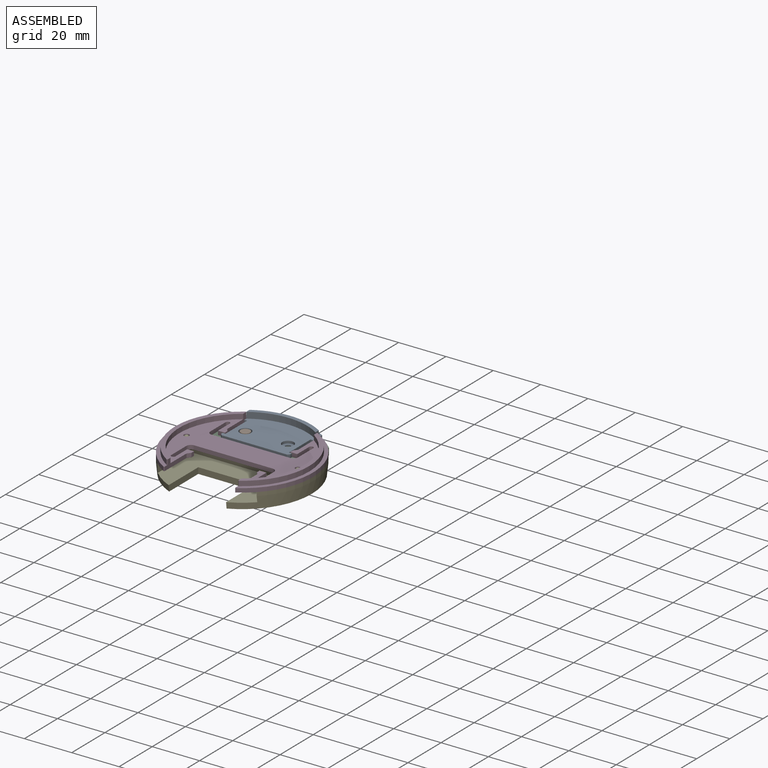
[diagram: assembled view]
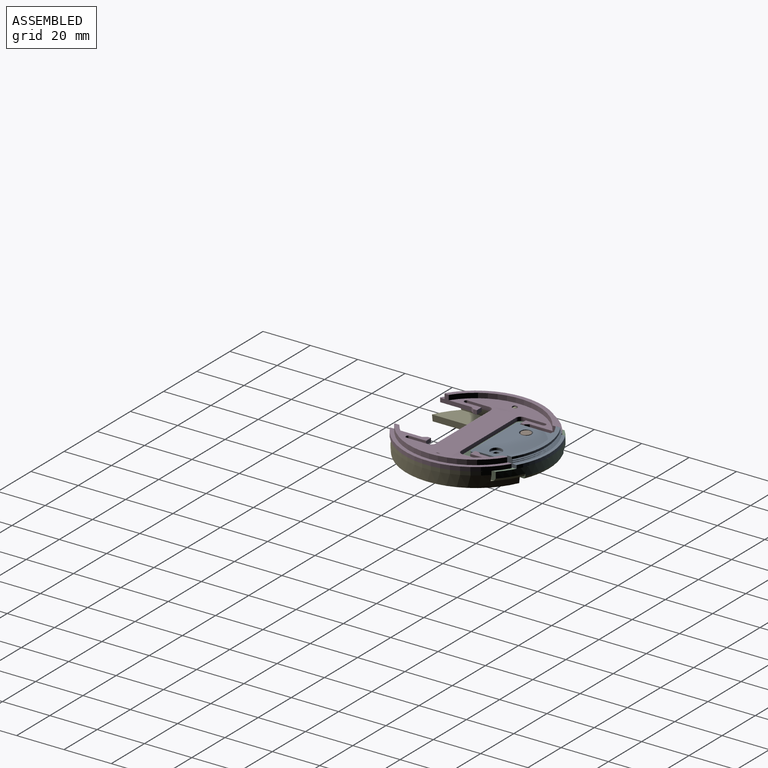
[diagram: assembled view, second angle]
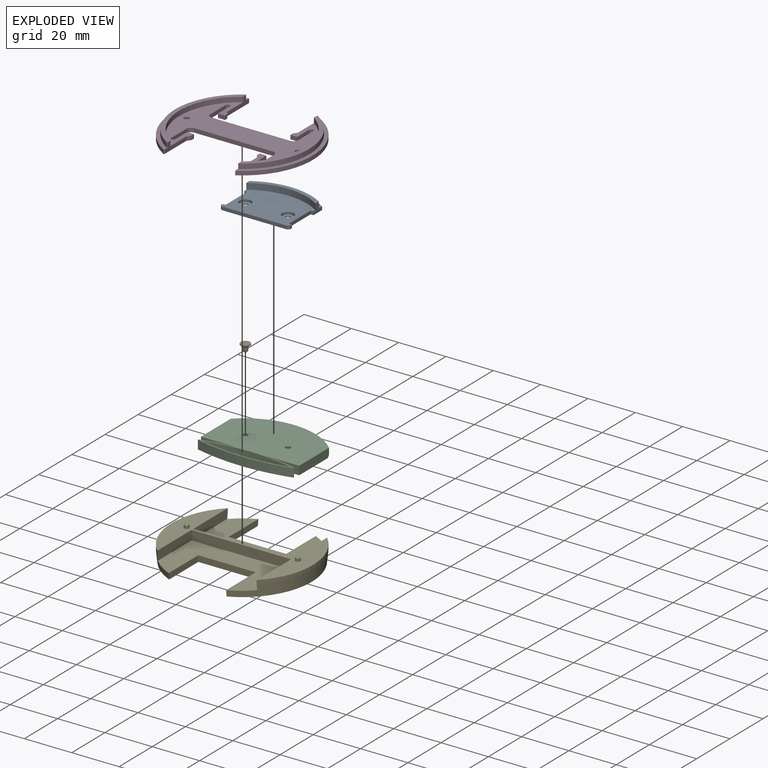
[diagram: exploded view]
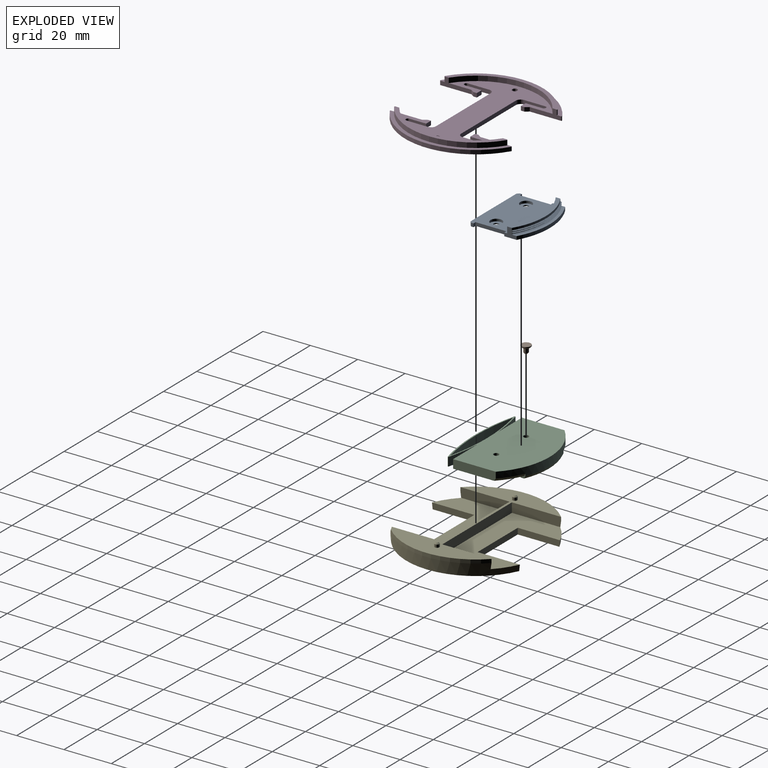
[diagram: exploded view, second angle]
ASSEMBLY  parts=5 mates=3
PART A: 33 faces, bbox 29.8x23.8x4 mm
  f0: cylinder r=1.1mm len=2.2mm, axis (0,0,-1), area 3mm2, adj f17,f31
  f1: cylinder r=1.1mm len=2.2mm, axis (0,0,-1), area 3mm2, adj f17,f29
  f2: cylinder r=28.32mm len=29.27mm, axis (0,0,-1), area 28.9mm2, adj f3,f8,f15,f18
  f3: plane 29.27x6.07mm, normal (0,0,1), area 52.2mm2, adj f2,f15,f18,f28
  f4: cone r=28.32mm half-angle=61.5deg, axis (0,0,-1), area 17.5mm2, adj f10,f15,f16,f18
  f5: cone r=28.82mm half-angle=61.5deg, axis (0,0,1), area 17.5mm2, adj f6,f10,f15,f18
  f6: cone r=28.32mm half-angle=61.5deg, axis (0,0,-1), area 17.5mm2, adj f5,f9,f15,f18
  f7: cone r=28.82mm half-angle=61.5deg, axis (0,0,1), area 17.5mm2, adj f8,f9,f15,f18
  f8: cone r=28.32mm half-angle=61.5deg, axis (0,0,-1), area 17.5mm2, adj f2,f7,f15,f18
  f9: cylinder r=28.32mm len=29.27mm, axis (0,0,-1), area 4.7mm2, adj f6,f7,f15,f18
  f10: cylinder r=28.32mm len=29.27mm, axis (0,0,-1), area 4.7mm2, adj f4,f5,f15,f18
  f11: plane 29.27x20.38mm, normal (0,0,1), area 485.3mm2, adj f12,f13,f14,f15,f18,f20,f21,f22
  f12: plane 1.44x1mm, normal (-1,0,0), area 1.4mm2, adj f11,f17,f24,f25
  f13: plane 27.69x1.44mm, normal (0,-1,0), area 39.9mm2, adj f11,f17,f23,f24
  f14: plane 1.44x1mm, normal (1,0,0), area 1.4mm2, adj f11,f17,f22,f23
  f15: plane 5.21x4.04mm, normal (1,0,0), area 13.1mm2, adj f2,f3,f4,f5,f6,f7,f8,f9
  f16: plane 29.27x5.25mm, normal (0,0,1), area 38.2mm2, adj f4,f15,f18,f19
  f17: plane 29.27x23.83mm, normal (0,0,-1), area 621mm2, adj f0,f1,f12,f13,f14,f15,f18,f19
  f18: plane 5.21x4.04mm, normal (-1,0,0), area 13.1mm2, adj f2,f3,f4,f5,f6,f7,f8,f9
  f19: cylinder r=29.9mm len=29.27mm, axis (0,0,-1), area 44mm2, adj f15,f16,f17,f18
  f20: plane 13x1.44mm, normal (1,0,0), area 18.7mm2, adj f11,f17,f21,f22
  f21: plane 1.44x1.23mm, normal (0,-1,0), area 1.8mm2, adj f11,f15,f17,f20
  f22: plane 1.44x1.23mm, normal (0,1,0), area 1.8mm2, adj f11,f14,f17,f20
  f23: plane 1.44x0.79mm, normal (0.71,-0.71,0), area 1.6mm2, adj f11,f13,f14,f17
  f24: plane 1.44x0.79mm, normal (-0.71,-0.71,0), area 1.6mm2, adj f11,f12,f13,f17
  f25: plane 1.44x1.23mm, normal (0,1,0), area 1.8mm2, adj f11,f12,f17,f26
  f26: plane 13x1.44mm, normal (-1,0,0), area 18.7mm2, adj f11,f17,f25,f27
  f27: plane 1.44x1.23mm, normal (0,-1,0), area 1.8mm2, adj f11,f17,f18,f26
  f28: cylinder r=26.63mm len=29.27mm, axis (0,0,-1), area 80.6mm2, adj f3,f11,f15,f18
  f29: plane 4.89x4.89mm, normal (0,0,1), area 15mm2, adj f1,f30
  f30: cylinder r=2.44mm len=4.89mm, axis (0,0,1), area 15.4mm2, adj f11,f29
  f31: plane 4.89x4.89mm, normal (0,0,1), area 15mm2, adj f0,f32
  f32: cylinder r=2.44mm len=4.89mm, axis (0,0,1), area 15.4mm2, adj f11,f31
PART B: 7 faces, bbox 4x4x3.3 mm
  f0: cylinder r=2mm len=4mm, axis (0,0,-1), area 5mm2, adj f2,f5
  f1: plane 3x3mm, normal (0,0,1), area 3.9mm2, adj f3,f5
  f2: plane 4x4mm, normal (0,0,-1), area 12.6mm2, adj f0
  f3: cylinder r=1mm len=2mm, axis (0,0,-1), area 11.9mm2, adj f1,f6
  f4: plane 1x1mm, normal (0,0,1), area 0.8mm2, adj f6
  f5: cone r=1.5mm half-angle=45deg, axis (0,0,-1), area 7.8mm2, adj f0,f1
  f6: cone r=0.5mm half-angle=45deg, axis (0,0,-1), area 3.3mm2, adj f3,f4
PART C: 33 faces, bbox 42.2x33.6x9.2 mm
  f0: plane 14.37x3.65mm, normal (0,-1,0), area 52.5mm2, adj f2,f3,f6,f19
  f1: plane 14.37x3.65mm, normal (0,-1,0), area 52.5mm2, adj f2,f4,f6,f20
  f2: plane 41.5x28.78mm, normal (0,0,1), area 621.4mm2, adj f0,f1,f3,f4,f8,f9,f10,f12
  f3: plane 18.01x3.66mm, normal (-1,0,0), area 65.4mm2, adj f0,f2,f5,f6,f27
  f4: plane 18.01x3.66mm, normal (1,0,0), area 65.4mm2, adj f1,f2,f5,f6,f28
  f5: cylinder r=29.9mm len=41.5mm, axis (0,0,-1), area 145.2mm2, adj f3,f4,f6,f12,f13,f26,f27,f28
  f6: plane 41.5x31.62mm, normal (0,0,-1), area 1016.4mm2, adj f0,f1,f3,f4,f5,f19,f20,f21
  f7: cylinder r=35mm len=23mm, axis (0,0,-1), area 123.7mm2, adj f8,f10,f11,f15,f16,f17
  f8: plane 2.78x2.32mm, normal (-1,0,0), area 6.5mm2, adj f2,f7,f9,f11
  f9: cylinder r=37.2mm len=23mm, axis (0,0,-1), area 65mm2, adj f2,f8,f10,f11
  f10: plane 2.78x2.32mm, normal (1,0,0), area 6.5mm2, adj f2,f7,f9,f11
  f11: plane 23x4.14mm, normal (0,0,1), area 51.5mm2, adj f7,f8,f9,f10
  f12: plane 2.91x2.02mm, normal (-1,0,0), area 2.4mm2, adj f2,f5,f14,f18,f26,f27
  f13: plane 2.91x2.02mm, normal (1,0,0), area 2.4mm2, adj f2,f5,f14,f18,f26,f28
  f14: plane 23x3.8mm, normal (0,0,1), area 31.6mm2, adj f12,f13,f18,f26
  f15: plane 9.05x2.5mm, normal (1,0,0), area 17.6mm2, adj f2,f7,f17,f18
  f16: plane 9.05x2.5mm, normal (-1,0,0), area 17.6mm2, adj f2,f7,f17,f18
  f17: plane 23x7.72mm, normal (0,0,1), area 138.1mm2, adj f7,f15,f16,f18
  f18: torus R=21.45mm, axis (0,0,-1), area 186.3mm2, adj f12,f13,f14,f15,f16,f17
  f19: cylinder r=81.5mm len=13.68mm, axis (0,0,1), area 50.7mm2, adj f0,f2,f6,f22
  f20: cylinder r=81.5mm len=13.68mm, axis (0,0,1), area 50.7mm2, adj f1,f2,f6,f24
  f21: cylinder r=81mm len=37.92mm, axis (0,0,1), area 139.7mm2, adj f2,f6,f25
  f22: cylinder r=0.25mm len=3.65mm, axis (0,0,1), area 2.4mm2, adj f2,f6,f19,f23
  f23: cylinder r=81.5mm len=40.12mm, axis (0,0,1), area 148mm2, adj f2,f6,f22,f24
  f24: cylinder r=0.25mm len=3.65mm, axis (0,0,1), area 2.4mm2, adj f2,f6,f20,f23
  f25: cylinder r=81mm len=37.92mm, axis (0,0,1), area 139.7mm2, adj f2,f6,f21
  f26: cone r=29.9mm half-angle=26.6deg, axis (0,0,-1), area 26.4mm2, adj f5,f12,f13,f14
  f27: cone r=29.9mm half-angle=26.6deg, axis (0,0,-1), area 12.5mm2, adj f2,f3,f5,f12
  f28: cone r=29.9mm half-angle=26.6deg, axis (0,0,-1), area 12.5mm2, adj f2,f4,f5,f13
  f29: cylinder r=1.1mm len=2.2mm, axis (0,0,-1), area 13.8mm2, adj f6,f30
  f30: plane 2.2x2.2mm, normal (0,0,-1), area 3.8mm2, adj f29
  f31: cylinder r=1.1mm len=2.2mm, axis (0,0,-1), area 13.8mm2, adj f6,f32
  f32: plane 2.2x2.2mm, normal (0,0,-1), area 3.8mm2, adj f31
PART D: 56 faces, bbox 59.8x51.4x3.8 mm
  f0: plane 53.05x43.84mm, normal (0,0,1), area 922.5mm2, adj f4,f5,f6,f7,f8,f9,f11,f12
  f1: plane 59.79x51.42mm, normal (0,0,-1), area 1307.5mm2, adj f4,f5,f6,f7,f8,f9,f10,f11
  f2: plane 51.42x14.96mm, normal (0,0,1), area 94.3mm2, adj f23,f24,f25,f36,f48,f49,f54,f55
  f3: plane 51.42x14.96mm, normal (0,0,1), area 94.3mm2, adj f9,f10,f11,f32,f50,f51,f52,f53
  f4: plane 9.1x1.7mm, normal (1,0,0), area 15.5mm2, adj f0,f1,f38,f45
  f5: plane 7.1x1.7mm, normal (-1,0,0), area 12.1mm2, adj f0,f1,f6,f38
  f6: plane 2.9x1.7mm, normal (0,-1,0), area 4.9mm2, adj f0,f1,f5,f7
  f7: plane 1.7x1.5mm, normal (1,0,0), area 2.6mm2, adj f0,f1,f6,f8
  f8: plane 1.7x1.5mm, normal (0.81,0.59,0), area 3.2mm2, adj f0,f1,f7,f9
  f9: plane 13.16x3.78mm, normal (1,0,0), area 25.9mm2, adj f0,f1,f3,f8,f33,f34,f51,f52
  f10: cylinder r=29.9mm len=51.35mm, axis (0,0,-1), area 105mm2, adj f1,f3,f52,f53
  f11: plane 13.16x3.78mm, normal (1,0,0), area 25.9mm2, adj f0,f1,f3,f12,f33,f34,f50,f53
  f12: plane 1.7x1.5mm, normal (0.81,-0.59,0), area 3.2mm2, adj f0,f1,f11,f13
  f13: plane 1.7x1.5mm, normal (1,0,0), area 2.6mm2, adj f0,f1,f12,f14
  f14: plane 2.9x1.7mm, normal (0,1,0), area 4.9mm2, adj f0,f1,f13,f15
  f15: plane 7.1x1.7mm, normal (-1,0,0), area 12.1mm2, adj f0,f1,f14,f39
  f16: plane 9.1x1.7mm, normal (1,0,0), area 15.5mm2, adj f0,f1,f39,f42
  f17: plane 33.07x1.7mm, normal (0,-1,0), area 56.2mm2, adj f0,f1,f42,f43
  f18: plane 9.1x1.7mm, normal (-1,0,0), area 15.5mm2, adj f0,f1,f40,f43
  f19: plane 7.1x1.7mm, normal (1,0,0), area 12.1mm2, adj f0,f1,f20,f40
  f20: plane 2.9x1.7mm, normal (0,1,0), area 4.9mm2, adj f0,f1,f19,f21
  f21: plane 1.7x1.5mm, normal (-1,0,0), area 2.6mm2, adj f0,f1,f20,f22
  f22: plane 1.7x1.5mm, normal (-0.81,-0.59,0), area 3.2mm2, adj f0,f1,f21,f23
  f23: plane 13.16x3.78mm, normal (-1,0,0), area 25.9mm2, adj f0,f1,f2,f22,f35,f37,f48,f54
  f24: cylinder r=29.9mm len=51.35mm, axis (0,0,-1), area 105mm2, adj f1,f2,f54,f55
  f25: plane 13.16x3.78mm, normal (-1,0,0), area 25.9mm2, adj f0,f1,f2,f26,f35,f37,f49,f55
  f26: plane 1.7x1.5mm, normal (-0.81,0.59,0), area 3.2mm2, adj f0,f1,f25,f27
  f27: plane 1.7x1.5mm, normal (-1,0,0), area 2.6mm2, adj f0,f1,f26,f28
  f28: plane 2.9x1.7mm, normal (0,-1,0), area 4.9mm2, adj f0,f1,f27,f29
  f29: plane 7.1x1.7mm, normal (1,0,0), area 12.1mm2, adj f0,f1,f28,f41
  f30: plane 9.1x1.7mm, normal (-1,0,0), area 15.5mm2, adj f0,f1,f41,f44
  f31: plane 33.07x1.7mm, normal (0,1,0), area 56.2mm2, adj f0,f1,f44,f45
  f32: cylinder r=28.32mm len=47.65mm, axis (0,0,-1), area 117.8mm2, adj f3,f34,f50,f51
  f33: cylinder r=26.52mm len=43.84mm, axis (0,0,-1), area 107.3mm2, adj f0,f9,f11,f34
  f34: plane 47.73x13.39mm, normal (0,0,1), area 98.1mm2, adj f9,f11,f32,f33,f50,f51
  f35: cylinder r=26.52mm len=43.84mm, axis (0,0,-1), area 107.3mm2, adj f0,f23,f25,f37
  f36: cylinder r=28.32mm len=47.65mm, axis (0,0,-1), area 117.8mm2, adj f2,f37,f48,f49
  f37: plane 47.73x13.39mm, normal (0,0,1), area 98.1mm2, adj f23,f25,f35,f36,f48,f49
  f38: cylinder r=0.9mm len=1.8mm, axis (0,0,1), area 4.8mm2, adj f0,f1,f4,f5
  f39: cylinder r=0.9mm len=1.8mm, axis (0,0,1), area 4.8mm2, adj f0,f1,f15,f16
  f40: cylinder r=0.9mm len=1.8mm, axis (0,0,1), area 4.8mm2, adj f0,f1,f18,f19
  f41: cylinder r=0.9mm len=1.8mm, axis (0,0,1), area 4.8mm2, adj f0,f1,f29,f30
  f42: cylinder r=2mm len=2mm, axis (0,0,1), area 5.3mm2, adj f0,f1,f16,f17
  f43: cylinder r=2mm len=2mm, axis (0,0,-1), area 5.3mm2, adj f0,f1,f17,f18
  f44: cylinder r=2mm len=2mm, axis (0,0,1), area 5.3mm2, adj f0,f1,f30,f31
  f45: cylinder r=2mm len=2mm, axis (0,0,-1), area 5.3mm2, adj f0,f1,f4,f31
  f46: cylinder r=1.1mm len=2.2mm, axis (0,0,1), area 11.7mm2, adj f0,f1
  f47: cylinder r=1.1mm len=2.2mm, axis (0,0,1), area 11.7mm2, adj f0,f1
  f48: cylinder r=0.25mm len=2.08mm, axis (0,0,-1), area 1.1mm2, adj f2,f23,f36,f37
  f49: cylinder r=0.25mm len=2.08mm, axis (0,0,-1), area 1.1mm2, adj f2,f25,f36,f37
  f50: cylinder r=0.25mm len=2.08mm, axis (0,0,-1), area 1.1mm2, adj f3,f11,f32,f34
  f51: cylinder r=0.25mm len=2.08mm, axis (0,0,-1), area 1.1mm2, adj f3,f9,f32,f34
  f52: cylinder r=0.25mm len=1.7mm, axis (0,0,-1), area 0.9mm2, adj f1,f3,f9,f10
  f53: cylinder r=0.25mm len=1.7mm, axis (0,0,-1), area 0.9mm2, adj f1,f3,f10,f11
  f54: cylinder r=0.25mm len=1.7mm, axis (0,0,-1), area 0.9mm2, adj f1,f2,f23,f24
  f55: cylinder r=0.25mm len=1.7mm, axis (0,0,-1), area 0.9mm2, adj f1,f2,f24,f25
PART E: 26 faces, bbox 59.8x54.6x8.3 mm
  f0: plane 42x26.56mm, normal (0,0,1), area 634.5mm2, adj f6,f7,f8,f11,f15,f16,f24,f25
  f1: plane 42x26.56mm, normal (0,0,1), area 634.5mm2, adj f2,f3,f4,f12,f13,f14,f24,f25
  f2: plane 17.88x2.55mm, normal (1,0,0), area 45.2mm2, adj f1,f3,f10,f25
  f3: plane 24.26x2.55mm, normal (0,-1,0), area 61.9mm2, adj f1,f2,f4,f10
  f4: plane 17.88x2.55mm, normal (-1,0,0), area 45.2mm2, adj f1,f3,f10,f24
  f5: cylinder r=29.9mm len=42.55mm, axis (0,0,-1), area 73.4mm2, adj f14,f15,f17,f24
  f6: plane 17.88x2.55mm, normal (-1,0,0), area 45.2mm2, adj f0,f7,f10,f24
  f7: plane 24.26x2.55mm, normal (0,1,0), area 61.9mm2, adj f0,f6,f8,f10
  f8: plane 17.88x2.55mm, normal (1,0,0), area 45.2mm2, adj f0,f7,f10,f25
  f9: cylinder r=29.9mm len=42.55mm, axis (0,0,-1), area 73.4mm2, adj f11,f12,f17,f25
  f10: plane 58.79x53.55mm, normal (0,0,-1), area 1775.3mm2, adj f2,f3,f4,f6,f7,f8,f24,f25
  f11: plane 20.78x4mm, normal (1,0,0), area 82.7mm2, adj f0,f9,f16,f17,f25
  f12: plane 20.78x4mm, normal (1,0,0), area 82.7mm2, adj f1,f9,f13,f17,f25
  f13: plane 42x4mm, normal (0,-1,0), area 168mm2, adj f1,f12,f14,f17
  f14: plane 20.78x4mm, normal (-1,0,0), area 82.7mm2, adj f1,f5,f13,f17,f24
  f15: plane 20.78x4mm, normal (-1,0,0), area 82.7mm2, adj f0,f5,f16,f17,f24
  f16: plane 42x4mm, normal (0,1,0), area 168mm2, adj f0,f11,f15,f17
  f17: plane 59.79x42.55mm, normal (0,0,1), area 557.6mm2, adj f5,f9,f11,f12,f13,f14,f15,f16
  f18: cylinder r=1mm len=2mm, axis (0,0,-1), area 7.5mm2, adj f17,f23
  f19: plane 1x1mm, normal (0,0,1), area 0.8mm2, adj f23
  f20: cylinder r=1mm len=2mm, axis (0,0,-1), area 7.5mm2, adj f17,f22
  f21: plane 1x1mm, normal (0,0,1), area 0.8mm2, adj f22
  f22: cone r=1mm half-angle=45deg, axis (0,0,-1), area 3.3mm2, adj f20,f21
  f23: cone r=0.5mm half-angle=45deg, axis (0,0,-1), area 3.3mm2, adj f18,f19
  f24: cone r=29.39mm half-angle=5.7deg, axis (0,0,1), area 289.1mm2, adj f0,f1,f4,f5,f6,f10,f14,f15
  f25: cone r=29.9mm half-angle=5.7deg, axis (0,0,1), area 289.1mm2, adj f0,f1,f2,f8,f9,f10,f11,f12
PLACE A t=(-0.06,7.4,6.55)mm
PLACE B rot(axis=(1,0,0),180deg) t=(-9.06,14.85,7.95)mm
PLACE C rot(axis=(0,1,0),180deg) t=(-0.06,4.85,6.55)mm
PLACE D t=(0,0,6.55)mm
PLACE E at identity
MATE fastened D.f10 <-> E.f9  axis (0,0,-1) through (0,0,6.55)mm
MATE fastened A.f19 <-> C.f5  axis (0,0,-1) through (-0.06,1.33,6.55)mm
MATE slider B.f3 <-> C.f29  axis (0,0,-1) through (-9.06,14.85,4.65)mm
